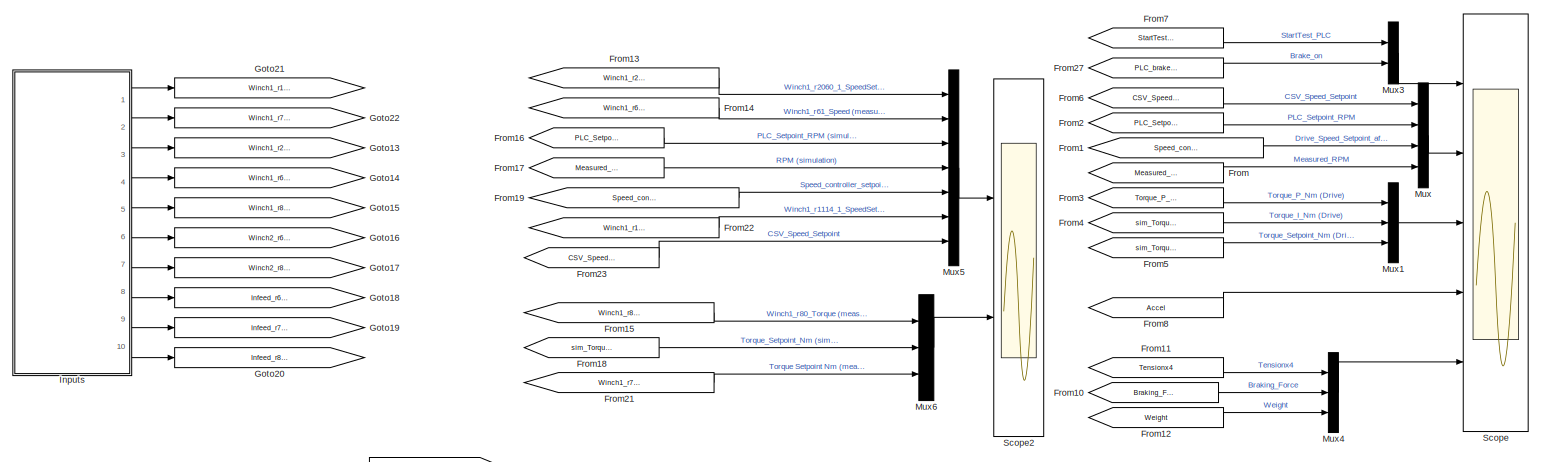
[diagram: root canvas - part 1/3, full width, top band]
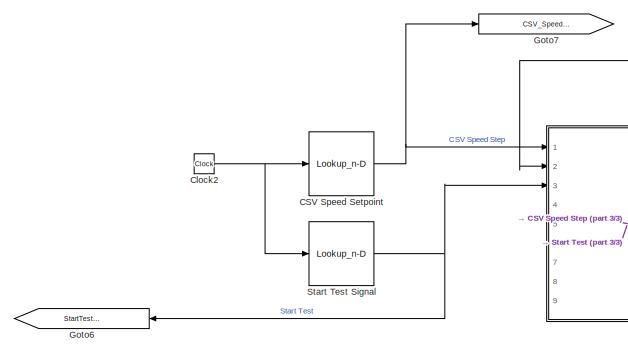
[diagram: root canvas - part 2/3, bottom left region]
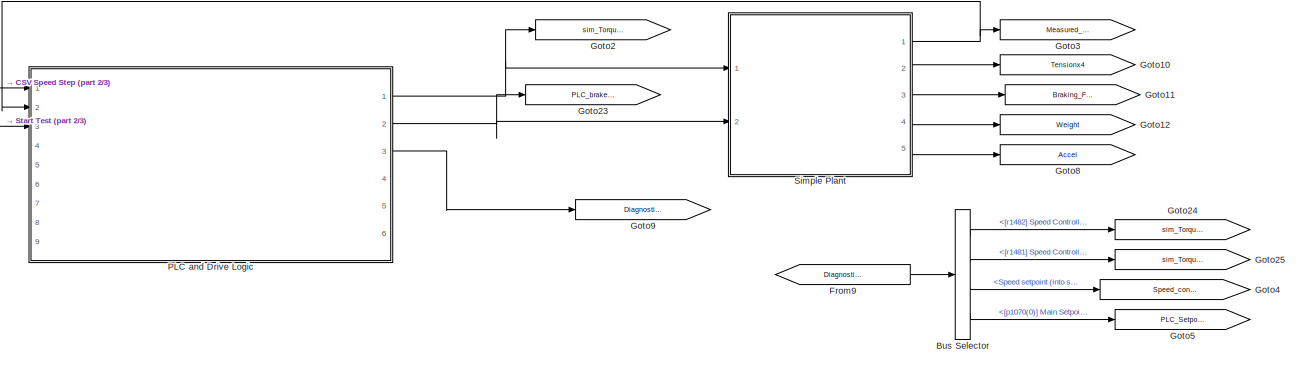
[diagram: root canvas - part 3/3, bottom center region]
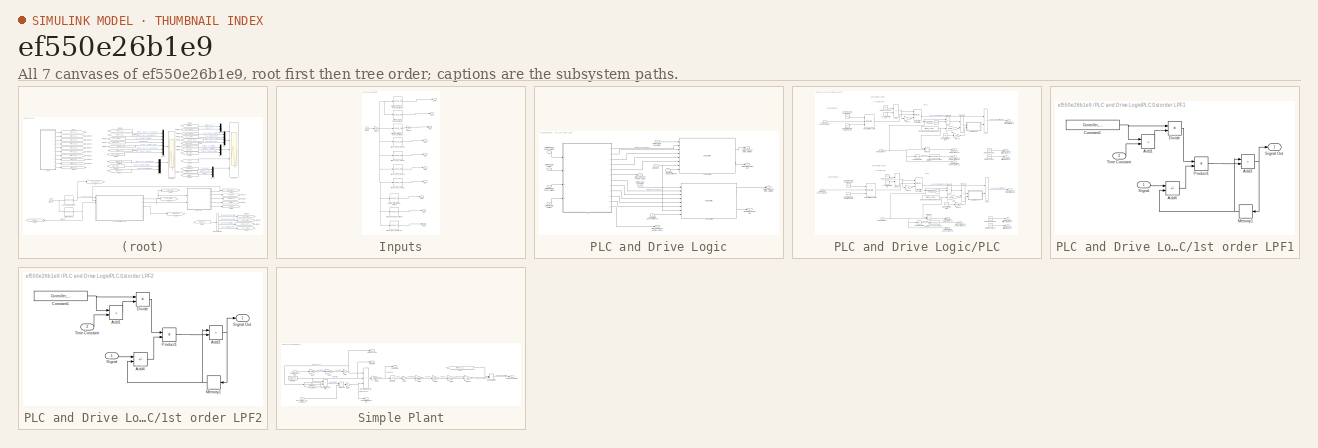
[diagram: thumbnail index - all 7 canvases of the model, root first then tree order]
MODEL slx_ef550e26b1e9
KIND model
CONFIG AbsTol = auto
CONFIG EnableMultiTasking = off
CONFIG FixedStep = auto
CONFIG MaxStep = 0.001
CONFIG MinStep = auto
CONFIG RelTol = 1e-3
CONFIG SampleTimeConstraint = Unconstrained
CONFIG SolverName = VariableStepAuto
CONFIG StartTime = 0.0
CONFIG StopTime = Time
BLOCK [BusSelector] Bus Selector
  OutputSignals = [r1482] Speed Controller I torque Output,[r1481] Speed Controller P torque Output,Speed setpoint (into speed controller),[p1070(0)]\nMain Setpoint\n(Speed setpoint from PLC)
  Ports = [1, 4]
BLOCK [Lookup_n-D] CSV Speed Setpoint
  BreakpointsForDimension1 = Speed_lookup_time
  InputPortMap = u0
  InternalRulePriority = Speed
  NumberOfTableDimensions = 1
  Ports = [1, 1]
  RndMeth = Simplest
  Table = Speed_lookup
BLOCK [Clock] Clock2
BLOCK [From] From
  GotoTag = Measured_RPM
BLOCK [From] From1
  GotoTag = Speed_controller_setpoint
BLOCK [From] From10
  GotoTag = Braking_Force
BLOCK [From] From11
  GotoTag = Tensionx4
BLOCK [From] From12
  GotoTag = Weight
BLOCK [From] From13
  GotoTag = Winch1_r2060_1_SpeedSetpoint
BLOCK [From] From14
  GotoTag = Winch1_r61_Speed
BLOCK [From] From15
  GotoTag = Winch1_r80_Torque
BLOCK [From] From16
  GotoTag = PLC_Setpoint_RPM
BLOCK [From] From17
  GotoTag = Measured_RPM
BLOCK [From] From18
  GotoTag = sim_Torque_Setpoint_Nm
BLOCK [From] From19
  GotoTag = Speed_controller_setpoint
BLOCK [From] From2
  GotoTag = PLC_Setpoint_RPM
BLOCK [From] From21
  GotoTag = Winch1_r79_TorqueSetpoint
BLOCK [From] From22
  GotoTag = Winch1_r1114_1_SpeedSetpoint
BLOCK [From] From23
  GotoTag = CSV_Speed_Setpoint
BLOCK [From] From27
  GotoTag = PLC_brake_on_command
BLOCK [From] From3
  GotoTag = Torque_P_Nm
BLOCK [From] From4
  GotoTag = sim_Torque_I_Nm
BLOCK [From] From5
  GotoTag = sim_Torque_Setpoint_Nm
  NameLocation = top
BLOCK [From] From6
  GotoTag = CSV_Speed_Setpoint
BLOCK [From] From7
  GotoTag = StartTest_PLC
BLOCK [From] From8
  GotoTag = Accel
BLOCK [From] From9
  GotoTag = Diagnostics_Bus
BLOCK [Goto] Goto10
  GotoTag = Tensionx4
BLOCK [Goto] Goto11
  GotoTag = Braking_Force
BLOCK [Goto] Goto12
  GotoTag = Weight
BLOCK [Goto] Goto13
  GotoTag = Winch1_r2060_1_SpeedSetpoint
BLOCK [Goto] Goto14
  GotoTag = Winch1_r61_Speed
BLOCK [Goto] Goto15
  GotoTag = Winch1_r80_Torque
BLOCK [Goto] Goto16
  GotoTag = Winch2_r61_Speed
BLOCK [Goto] Goto17
  GotoTag = Winch2_r80_Torque
BLOCK [Goto] Goto18
  GotoTag = Infeed_r68_Infeed_Current
BLOCK [Goto] Goto19
  GotoTag = Infeed_r70_DC_Voltage
BLOCK [Goto] Goto2
  GotoTag = sim_Torque_Setpoint_Nm
BLOCK [Goto] Goto20
  GotoTag = Infeed_r82_Power_kW
BLOCK [Goto] Goto21
  GotoTag = Winch1_r1114_1_SpeedSetpoint
BLOCK [Goto] Goto22
  GotoTag = Winch1_r79_TorqueSetpoint
BLOCK [Goto] Goto23
  GotoTag = PLC_brake_on_command
BLOCK [Goto] Goto24
  GotoTag = sim_Torque_I_Nm
BLOCK [Goto] Goto25
  GotoTag = sim_Torque_P_Nm
BLOCK [Goto] Goto3
  GotoTag = Measured_RPM
BLOCK [Goto] Goto4
  GotoTag = Speed_controller_setpoint
BLOCK [Goto] Goto5
  GotoTag = PLC_Setpoint_RPM
BLOCK [Goto] Goto6
  GotoTag = StartTest_PLC
  NameLocation = top
BLOCK [Goto] Goto7
  GotoTag = CSV_Speed_Setpoint
BLOCK [Goto] Goto8
  GotoTag = Accel
BLOCK [Goto] Goto9
  GotoTag = Diagnostics_Bus
BLOCK [SubSystem] Inputs
  Ports = [0, 10]
  RequestExecContextInheritance = off
BLOCK [Clock] Inputs/Clock
BLOCK [Gain] Inputs/Gain13
  Gain = 1e3
BLOCK [Gain] Inputs/Gain14
  Gain = 1.56*1e-6
BLOCK [Lookup_n-D] Inputs/Infeed_r68_Infeed_Current
  BreakpointsForDimension1 = Time_ms
  InputPortMap = u0
  InternalRulePriority = Speed
  NumberOfTableDimensions = 1
  Ports = [1, 1]
  RndMeth = Simplest
  Table = Infeed_r68_Infeed_Current
BLOCK [Lookup_n-D] Inputs/Infeed_r70_DC_Voltage
  BreakpointsForDimension1 = Time_ms
  InputPortMap = u0
  InternalRulePriority = Speed
  NumberOfTableDimensions = 1
  Ports = [1, 1]
  RndMeth = Simplest
  Table = Infeed_r70_DC_Voltage
BLOCK [Lookup_n-D] Inputs/Infeed_r82_Power_kW
  BreakpointsForDimension1 = Time_ms
  InputPortMap = u0
  InternalRulePriority = Speed
  NumberOfTableDimensions = 1
  Ports = [1, 1]
  RndMeth = Simplest
  Table = Infeed_r82_Power_kW
BLOCK [Outport] Inputs/Out1
BLOCK [Outport] Inputs/Out10
  Port = 10
BLOCK [Outport] Inputs/Out2
  Port = 2
BLOCK [Outport] Inputs/Out3
  Port = 3
BLOCK [Outport] Inputs/Out4
  Port = 4
BLOCK [Outport] Inputs/Out5
  Port = 5
BLOCK [Outport] Inputs/Out6
  Port = 6
BLOCK [Outport] Inputs/Out7
  Port = 7
BLOCK [Outport] Inputs/Out8
  Port = 8
BLOCK [Outport] Inputs/Out9
  Port = 9
BLOCK [Lookup_n-D] Inputs/Winch1_r1114_1_SpeedSetpoint
  BreakpointsForDimension1 = Time_ms
  InputPortMap = u0
  InternalRulePriority = Speed
  NumberOfTableDimensions = 1
  Ports = [1, 1]
  RndMeth = Simplest
  Table = Winch1_r1114_1_SpeedSetpoint
BLOCK [Lookup_n-D] Inputs/Winch1_r2060_1_SpeedSetpoint
  BreakpointsForDimension1 = Time_ms
  InputPortMap = u0
  InternalRulePriority = Speed
  NumberOfTableDimensions = 1
  Ports = [1, 1]
  RndMeth = Simplest
  Table = Winch1_r2060_1_SpeedSetpoint
BLOCK [Lookup_n-D] Inputs/Winch1_r61_Speed
  BreakpointsForDimension1 = Time_ms
  InputPortMap = u0
  InternalRulePriority = Speed
  NumberOfTableDimensions = 1
  Ports = [1, 1]
  RndMeth = Simplest
  Table = Winch1_r61_Speed
BLOCK [Lookup_n-D] Inputs/Winch1_r79_TorqueSetpoint
  BreakpointsForDimension1 = Time_ms
  InputPortMap = u0
  InternalRulePriority = Speed
  NumberOfTableDimensions = 1
  Ports = [1, 1]
  RndMeth = Simplest
  Table = Winch1_r79_TorqueSetpoint
BLOCK [Lookup_n-D] Inputs/Winch1_r80_Torque
  BreakpointsForDimension1 = Time_ms
  InputPortMap = u0
  InternalRulePriority = Speed
  NumberOfTableDimensions = 1
  Ports = [1, 1]
  RndMeth = Simplest
  Table = Winch1_r80_Torque
BLOCK [Lookup_n-D] Inputs/Winch2_r61_Speed
  BreakpointsForDimension1 = Time_ms
  InputPortMap = u0
  InternalRulePriority = Speed
  NumberOfTableDimensions = 1
  Ports = [1, 1]
  RndMeth = Simplest
  Table = Winch2_r61_Speed
BLOCK [Lookup_n-D] Inputs/Winch2_r80_Torque
  BreakpointsForDimension1 = Time_ms
  InputPortMap = u0
  InternalRulePriority = Speed
  NumberOfTableDimensions = 1
  Ports = [1, 1]
  RndMeth = Simplest
  Table = Winch2_r80_Torque
BLOCK [Mux] Mux
  DisplayOption = bar
  Ports = [4, 1]
BLOCK [Mux] Mux1
  DisplayOption = bar
  Inputs = 3
  Ports = [3, 1]
BLOCK [Mux] Mux3
  DisplayOption = bar
  Inputs = 2
  Ports = [2, 1]
BLOCK [Mux] Mux4
  DisplayOption = bar
  Inputs = 3
  Ports = [3, 1]
BLOCK [Mux] Mux5
  DisplayOption = bar
  Inputs = 7
  Ports = [7, 1]
BLOCK [Mux] Mux6
  DisplayOption = bar
  Inputs = 3
  Ports = [3, 1]
BLOCK [SubSystem] PLC and Drive Logic
  AncestorBlock = Control_Library_Rev3/PLC and Drive Logic
  Ports = [9, 6]
  RequestExecContextInheritance = off
BLOCK [Inport] PLC and Drive Logic/HMI Motor 1 CSV Speed Setpoint (rpm)
BLOCK [Inport] PLC and Drive Logic/HMI Motor 1 Start Test [0...1]
  Port = 3
BLOCK [Inport] PLC and Drive Logic/HMI Motor 2 CSV Speed Setpoint (rpm)
  Port = 4
BLOCK [Inport] PLC and Drive Logic/HMI Motor 2 Start Test [0...1]
  Port = 5
BLOCK [Outport] PLC and Drive Logic/M1 [r0079] M_set total (Torque setpoint [Nm])
BLOCK [Outport] PLC and Drive Logic/M2 [r0079] M_set total (Torque setpoint [Nm])
  Port = 4
BLOCK [Inport] PLC and Drive Logic/Motor 1 Actual Speed (rpm)
  NameLocation = top
  Port = 2
BLOCK [Outport] PLC and Drive Logic/Motor 1 Diagnostics Bus
  Port = 3
BLOCK [Inport] PLC and Drive Logic/Motor 2 Actual Speed (rpm)
  NameLocation = top
  Port = 6
BLOCK [Outport] PLC and Drive Logic/Motor 2 Diagnostics Bus
  Port = 5
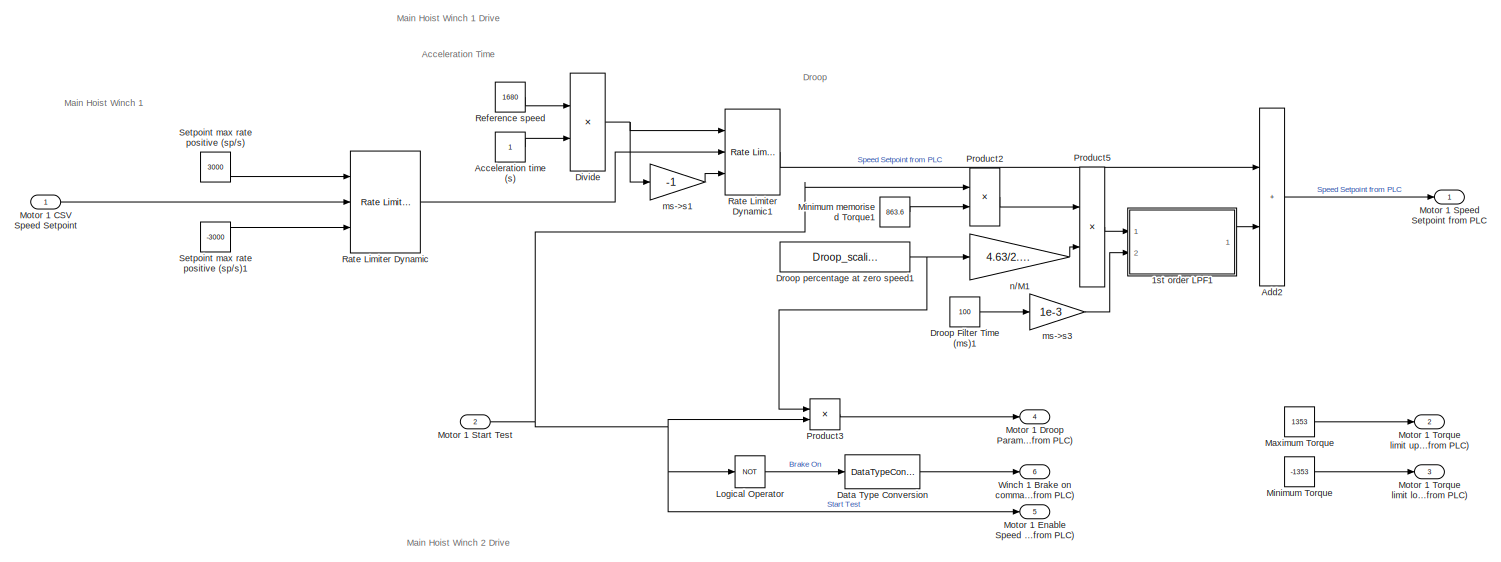
[diagram: PLC and Drive Logic/PLC - part 1/2, full width, top band]
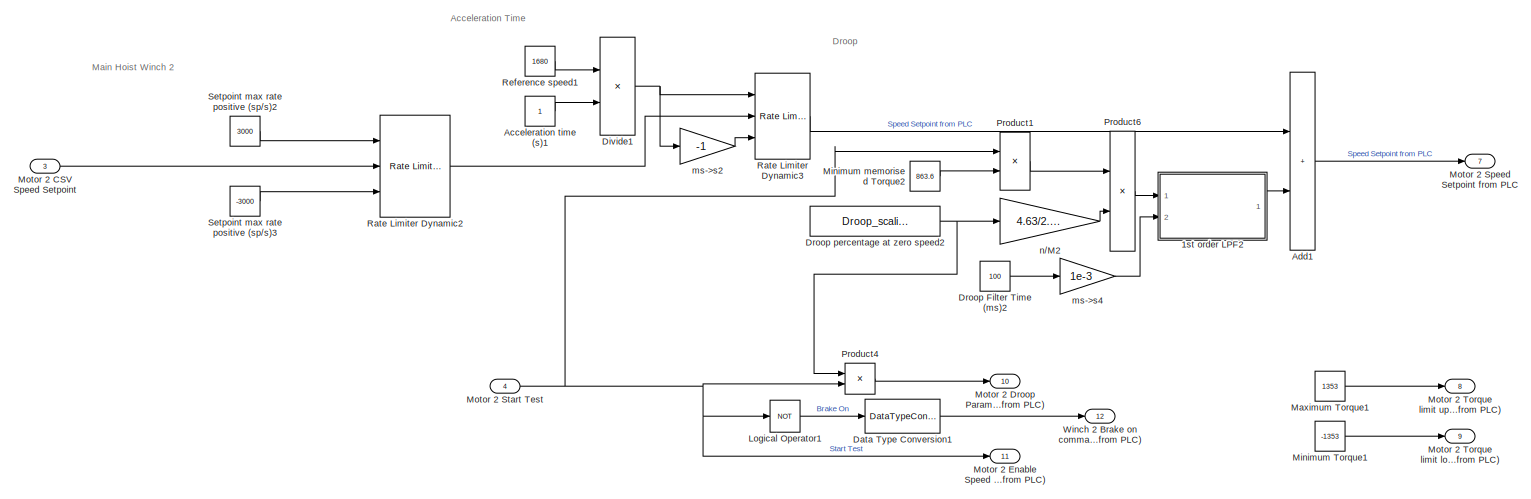
[diagram: PLC and Drive Logic/PLC - part 2/2, full width, bottom band]
BLOCK [SubSystem] PLC and Drive Logic/PLC
  Ports = [4, 12]
  RequestExecContextInheritance = off
  SystemSampleTime = Controller_sampleTime
  TreatAsAtomicUnit = on
BLOCK [SubSystem] PLC and Drive Logic/PLC/1st order LPF1
  Ports = [2, 1]
  RequestExecContextInheritance = off
BLOCK [Sum] PLC and Drive Logic/PLC/1st order LPF1/Add1
  IconShape = rectangular
  Ports = [2, 1]
BLOCK [Sum] PLC and Drive Logic/PLC/1st order LPF1/Add3
  IconShape = rectangular
  Ports = [2, 1]
BLOCK [Sum] PLC and Drive Logic/PLC/1st order LPF1/Add4
  IconShape = rectangular
  Inputs = +-
  Ports = [2, 1]
BLOCK [Constant] PLC and Drive Logic/PLC/1st order LPF1/Constant1
  Value = Controller_sampleTime
BLOCK [Product] PLC and Drive Logic/PLC/1st order LPF1/Divide
  Inputs = */
  Ports = [2, 1]
BLOCK [Memory] PLC and Drive Logic/PLC/1st order LPF1/Memory1
  InheritSampleTime = on
  InitialCondition = Yo
BLOCK [Product] PLC and Drive Logic/PLC/1st order LPF1/Product1
  Ports = [2, 1]
  RndMeth = Zero
BLOCK [Inport] PLC and Drive Logic/PLC/1st order LPF1/Signal
BLOCK [Outport] PLC and Drive Logic/PLC/1st order LPF1/Signal Out
  VectorParamsAs1DForOutWhenUnconnected = off
BLOCK [Inport] PLC and Drive Logic/PLC/1st order LPF1/Time Constant
  Port = 2
BLOCK [SubSystem] PLC and Drive Logic/PLC/1st order LPF2
  Ports = [2, 1]
  RequestExecContextInheritance = off
BLOCK [Sum] PLC and Drive Logic/PLC/1st order LPF2/Add1
  IconShape = rectangular
  Ports = [2, 1]
BLOCK [Sum] PLC and Drive Logic/PLC/1st order LPF2/Add3
  IconShape = rectangular
  Ports = [2, 1]
BLOCK [Sum] PLC and Drive Logic/PLC/1st order LPF2/Add4
  IconShape = rectangular
  Inputs = +-
  Ports = [2, 1]
BLOCK [Constant] PLC and Drive Logic/PLC/1st order LPF2/Constant1
  Value = Controller_sampleTime
BLOCK [Product] PLC and Drive Logic/PLC/1st order LPF2/Divide
  Inputs = */
  Ports = [2, 1]
BLOCK [Memory] PLC and Drive Logic/PLC/1st order LPF2/Memory1
  InheritSampleTime = on
  InitialCondition = Yo
BLOCK [Product] PLC and Drive Logic/PLC/1st order LPF2/Product1
  Ports = [2, 1]
  RndMeth = Zero
BLOCK [Inport] PLC and Drive Logic/PLC/1st order LPF2/Signal
BLOCK [Outport] PLC and Drive Logic/PLC/1st order LPF2/Signal Out
  VectorParamsAs1DForOutWhenUnconnected = off
BLOCK [Inport] PLC and Drive Logic/PLC/1st order LPF2/Time Constant
  Port = 2
BLOCK [Constant] PLC and Drive Logic/PLC/Acceleration time (s)
BLOCK [Constant] PLC and Drive Logic/PLC/Acceleration time (s)1
BLOCK [Sum] PLC and Drive Logic/PLC/Add1
  IconShape = rectangular
  Ports = [2, 1]
BLOCK [Sum] PLC and Drive Logic/PLC/Add2
  IconShape = rectangular
  Ports = [2, 1]
BLOCK [DataTypeConversion] PLC and Drive Logic/PLC/Data Type Conversion
  OutDataTypeStr = double
  RndMeth = Floor
  SaturateOnIntegerOverflow = off
BLOCK [DataTypeConversion] PLC and Drive Logic/PLC/Data Type Conversion1
  OutDataTypeStr = double
  RndMeth = Floor
  SaturateOnIntegerOverflow = off
BLOCK [Product] PLC and Drive Logic/PLC/Divide
  Inputs = */
  Ports = [2, 1]
BLOCK [Product] PLC and Drive Logic/PLC/Divide1
  Inputs = */
  Ports = [2, 1]
BLOCK [Constant] PLC and Drive Logic/PLC/Droop Filter Time (ms)1
  Value = 100
BLOCK [Constant] PLC and Drive Logic/PLC/Droop Filter Time (ms)2
  Value = 100
BLOCK [Constant] PLC and Drive Logic/PLC/Droop percentage at zero speed1
  Value = Droop_scaling
BLOCK [Constant] PLC and Drive Logic/PLC/Droop percentage at zero speed2
  Value = Droop_scaling
BLOCK [Logic] PLC and Drive Logic/PLC/Logical Operator
  AllPortsSameDT = off
  Operator = NOT
  OutDataTypeStr = boolean
  Ports = [1, 1]
BLOCK [Logic] PLC and Drive Logic/PLC/Logical Operator1
  AllPortsSameDT = off
  Operator = NOT
  OutDataTypeStr = boolean
  Ports = [1, 1]
BLOCK [Constant] PLC and Drive Logic/PLC/Maximum Torque
  Value = 1353
BLOCK [Constant] PLC and Drive Logic/PLC/Maximum Torque1
  Value = 1353
BLOCK [Constant] PLC and Drive Logic/PLC/Minimum Torque
  Value = -1353
BLOCK [Constant] PLC and Drive Logic/PLC/Minimum Torque1
  Value = -1353
BLOCK [Constant] PLC and Drive Logic/PLC/Minimum memorised Torque1
  Value = 863.6
BLOCK [Constant] PLC and Drive Logic/PLC/Minimum memorised Torque2
  Value = 863.6
BLOCK [Inport] PLC and Drive Logic/PLC/Motor 1 CSV Speed Setpoint
BLOCK [Outport] PLC and Drive Logic/PLC/Motor 1 Droop Parameter (from PLC)
  Port = 4
BLOCK [Outport] PLC and Drive Logic/PLC/Motor 1 Enable Speed Setpoint (from PLC)
  Port = 5
BLOCK [Outport] PLC and Drive Logic/PLC/Motor 1 Speed Setpoint from PLC
BLOCK [Inport] PLC and Drive Logic/PLC/Motor 1 Start Test
  Port = 2
BLOCK [Outport] PLC and Drive Logic/PLC/Motor 1 Torque limit lower (from PLC)
  Port = 3
BLOCK [Outport] PLC and Drive Logic/PLC/Motor 1 Torque limit upper (from PLC)
  Port = 2
BLOCK [Inport] PLC and Drive Logic/PLC/Motor 2 CSV Speed Setpoint
  Port = 3
BLOCK [Outport] PLC and Drive Logic/PLC/Motor 2 Droop Parameter (from PLC)
  Port = 10
BLOCK [Outport] PLC and Drive Logic/PLC/Motor 2 Enable Speed Setpoint (from PLC)
  Port = 11
BLOCK [Outport] PLC and Drive Logic/PLC/Motor 2 Speed Setpoint from PLC
  Port = 7
BLOCK [Inport] PLC and Drive Logic/PLC/Motor 2 Start Test
  Port = 4
BLOCK [Outport] PLC and Drive Logic/PLC/Motor 2 Torque limit lower (from PLC)
  Port = 9
BLOCK [Outport] PLC and Drive Logic/PLC/Motor 2 Torque limit upper (from PLC)
  Port = 8
BLOCK [Product] PLC and Drive Logic/PLC/Product1
  Inputs = **
  Ports = [2, 1]
BLOCK [Product] PLC and Drive Logic/PLC/Product2
  Inputs = **
  Ports = [2, 1]
BLOCK [Product] PLC and Drive Logic/PLC/Product3
  Ports = [2, 1]
BLOCK [Product] PLC and Drive Logic/PLC/Product4
  Ports = [2, 1]
BLOCK [Product] PLC and Drive Logic/PLC/Product5
  Inputs = **
  Ports = [2, 1]
BLOCK [Product] PLC and Drive Logic/PLC/Product6
  Inputs = **
  Ports = [2, 1]
BLOCK [Reference] PLC and Drive Logic/PLC/Rate Limiter Dynamic  REF=simulink/Discontinuities/Rate Limiter
Dynamic
  NameLocation = top
  Ports = [3, 1]
  SourceBlock = simulink/Discontinuities/Rate Limiter\nDynamic
  SourceProductBaseCode = SL
  SourceType = Rate Limiter Dynamic
BLOCK [Reference] PLC and Drive Logic/PLC/Rate Limiter Dynamic1  REF=simulink/Discontinuities/Rate Limiter
Dynamic
  Ports = [3, 1]
  SourceBlock = simulink/Discontinuities/Rate Limiter\nDynamic
  SourceProductBaseCode = SL
  SourceType = Rate Limiter Dynamic
BLOCK [Reference] PLC and Drive Logic/PLC/Rate Limiter Dynamic2  REF=simulink/Discontinuities/Rate Limiter
Dynamic
  NameLocation = top
  Ports = [3, 1]
  SourceBlock = simulink/Discontinuities/Rate Limiter\nDynamic
  SourceProductBaseCode = SL
  SourceType = Rate Limiter Dynamic
BLOCK [Reference] PLC and Drive Logic/PLC/Rate Limiter Dynamic3  REF=simulink/Discontinuities/Rate Limiter
Dynamic
  Ports = [3, 1]
  SourceBlock = simulink/Discontinuities/Rate Limiter\nDynamic
  SourceProductBaseCode = SL
  SourceType = Rate Limiter Dynamic
BLOCK [Constant] PLC and Drive Logic/PLC/Reference speed
  Value = 1680
BLOCK [Constant] PLC and Drive Logic/PLC/Reference speed1
  Value = 1680
BLOCK [Constant] PLC and Drive Logic/PLC/Setpoint max rate positive (sp//s)
  Value = 3000
BLOCK [Constant] PLC and Drive Logic/PLC/Setpoint max rate positive (sp//s)1
  Value = -3000
BLOCK [Constant] PLC and Drive Logic/PLC/Setpoint max rate positive (sp//s)2
  Value = 3000
BLOCK [Constant] PLC and Drive Logic/PLC/Setpoint max rate positive (sp//s)3
  Value = -3000
BLOCK [Outport] PLC and Drive Logic/PLC/Winch 1 Brake on command (from PLC)
  Port = 6
BLOCK [Outport] PLC and Drive Logic/PLC/Winch 2 Brake on command (from PLC)
  Port = 12
BLOCK [Gain] PLC and Drive Logic/PLC/ms->s1
  Gain = -1
BLOCK [Gain] PLC and Drive Logic/PLC/ms->s2
  Gain = -1
BLOCK [Gain] PLC and Drive Logic/PLC/ms->s3
  Gain = 1e-3
BLOCK [Gain] PLC and Drive Logic/PLC/ms->s4
  Gain = 1e-3
BLOCK [Gain] PLC and Drive Logic/PLC/n//M1
  Gain = 4.63/2.52982
BLOCK [Gain] PLC and Drive Logic/PLC/n//M2
  Gain = 4.63/2.52982
BLOCK [Reference] PLC and Drive Logic/VFD Control1  REF=Control_Library_Rev3/VFD Control
  Ports = [8, 2]
  SourceBlock = Control_Library_Rev3/VFD Control
  SourceType = SubSystem
BLOCK [Reference] PLC and Drive Logic/VFD Control2  REF=Control_Library_Rev3/VFD Control
  Ports = [8, 2]
  SourceBlock = Control_Library_Rev3/VFD Control
  SourceType = SubSystem
BLOCK [Inport] PLC and Drive Logic/WAB Mode
  Port = 7
BLOCK [Inport] PLC and Drive Logic/WAB Motor 1 Speed_Controller Setpoint (r1438)
  Port = 8
BLOCK [Inport] PLC and Drive Logic/WAB Motor 2 Speed_Controller Setpoint (r1438)
  Port = 9
BLOCK [Outport] PLC and Drive Logic/Winch 1 brake on command (from PLC) [0...1]
  Port = 2
BLOCK [Outport] PLC and Drive Logic/Winch 2 brake on command (from PLC) [0...1]
  Port = 6
BLOCK [Scope] Scope
  Floating = off
  NumInputPorts = 5
  Ports = [5]
  ScopeSpecificationString = Simulink.scopes.TimeScopeBlockCfg('CurrentConfiguration', extmgr.ConfigurationSet(extmgr.Configuration('Core','General UI',true),extmgr.Configuration('Core','Source UI',true),extmgr.Configuration('Sources','WiredSimulink',true),extmgr.Configuration('Visuals','Time Domain',true,'SerializedDisplays',{struct('MinYLimReal','-0.125','MaxYLimReal','1.125','YLabelReal','','MinYLimMag','0.00000','MaxYLimM...<+5071ch>
BLOCK [Scope] Scope2
  Floating = off
  NumInputPorts = 2
  Ports = [2]
  ScopeSpecificationString = Simulink.scopes.TimeScopeBlockCfg('CurrentConfiguration', extmgr.ConfigurationSet(extmgr.Configuration('Core','General UI',true),extmgr.Configuration('Core','Source UI',true),extmgr.Configuration('Sources','WiredSimulink',true,'DataLoggingVariableName','ScopeData1'),extmgr.Configuration('Visuals','Time Domain',true,'SerializedDisplays',{struct('MinYLimReal','-2083.89888','MaxYLimReal','1596.43147'...<+2899ch>
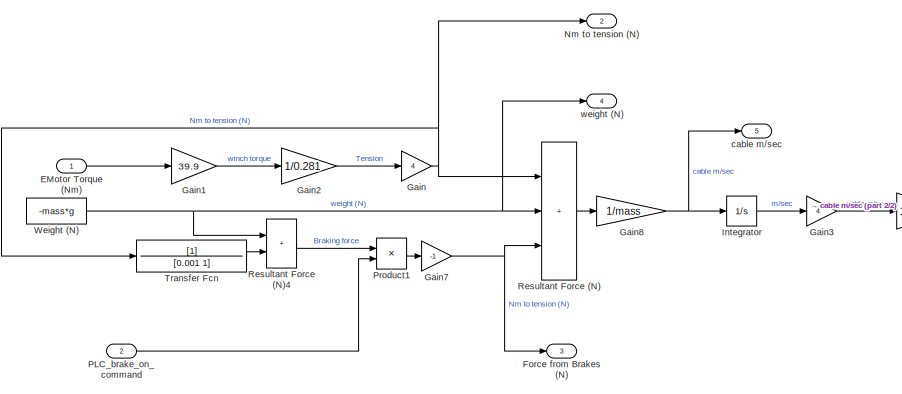
[diagram: Simple Plant - part 1/2, left side, full height]
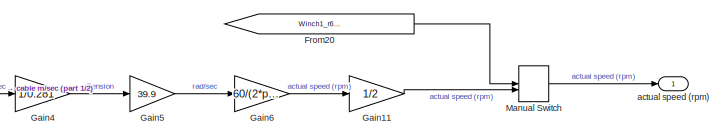
[diagram: Simple Plant - part 2/2, middle right region]
BLOCK [SubSystem] Simple Plant
  Ports = [2, 5]
  RequestExecContextInheritance = off
BLOCK [Inport] Simple Plant/EMotor Torque (Nm)
  NameLocation = top
BLOCK [Outport] Simple Plant/Force from Brakes (N)
  Port = 3
BLOCK [From] Simple Plant/From20
  GotoTag = Winch1_r61_Speed
BLOCK [Gain] Simple Plant/Gain
  Gain = 4
BLOCK [Gain] Simple Plant/Gain1
  Gain = 39.9
BLOCK [Gain] Simple Plant/Gain11
  Gain = 1/2
BLOCK [Gain] Simple Plant/Gain2
  Gain = 1/0.281
BLOCK [Gain] Simple Plant/Gain3
  Gain = 4
BLOCK [Gain] Simple Plant/Gain4
  Gain = 1/0.281
BLOCK [Gain] Simple Plant/Gain5
  Gain = 39.9
BLOCK [Gain] Simple Plant/Gain6
  Gain = 60/(2*pi)
BLOCK [Gain] Simple Plant/Gain7
  Gain = -1
BLOCK [Gain] Simple Plant/Gain8
  Gain = 1/mass
BLOCK [Integrator] Simple Plant/Integrator
  Ports = [1, 1]
BLOCK [ManualSwitch] Simple Plant/Manual Switch
  CurrentSetting = 0
BLOCK [Outport] Simple Plant/Nm to tension (N)
  Port = 2
BLOCK [Inport] Simple Plant/PLC_brake_on_command
  Port = 2
BLOCK [Product] Simple Plant/Product1
  Ports = [2, 1]
BLOCK [Sum] Simple Plant/Resultant Force (N)
  IconShape = rectangular
  Inputs = +++
  Ports = [3, 1]
BLOCK [Sum] Simple Plant/Resultant Force (N)4
  IconShape = rectangular
  Ports = [2, 1]
BLOCK [TransferFcn] Simple Plant/Transfer Fcn
  Denominator = [0.001 1]
BLOCK [Constant] Simple Plant/Weight (N)
  Value = -mass*g
BLOCK [Outport] Simple Plant/actual speed (rpm)
BLOCK [Outport] Simple Plant/cable m//sec
  Port = 5
BLOCK [Outport] Simple Plant/weight (N)
  Port = 4
BLOCK [Lookup_n-D] Start Test Signal
  BreakpointsForDimension1 = Experiment_Start_lookup_time
  InputPortMap = u0
  InternalRulePriority = Speed
  NumberOfTableDimensions = 1
  Ports = [1, 1]
  RndMeth = Simplest
  Table = Experiment_Start_lookup
ANNOTATION PLC and Drive Logic/PLC: Acceleration Time
ANNOTATION PLC and Drive Logic/PLC: Droop
ANNOTATION PLC and Drive Logic/PLC: Main Hoist Winch 1
ANNOTATION PLC and Drive Logic/PLC: Main Hoist Winch 1 Drive
ANNOTATION PLC and Drive Logic/PLC: Main Hoist Winch 2
ANNOTATION PLC and Drive Logic/PLC: Main Hoist Winch 2 Drive
LINE Bus Selector:1 -> Goto24:1
LINE Bus Selector:2 -> Goto25:1
LINE Bus Selector:3 -> Goto4:1
LINE Bus Selector:4 -> Goto5:1
NET CSV Speed Setpoint:1 -> Goto7:1, PLC and Drive Logic:1
NET Clock2:1 -> CSV Speed Setpoint:1, Start Test Signal:1
LINE From10:1 -> Mux4:2
LINE From11:1 -> Mux4:1
LINE From12:1 -> Mux4:3
LINE From13:1 -> Mux5:1
LINE From14:1 -> Mux5:2
LINE From15:1 -> Mux6:1
LINE From16:1 -> Mux5:3
LINE From17:1 -> Mux5:4
LINE From18:1 -> Mux6:2
LINE From19:1 -> Mux5:5
LINE From1:1 -> Mux:3
LINE From21:1 -> Mux6:3
LINE From22:1 -> Mux5:6
LINE From23:1 -> Mux5:7
LINE From27:1 -> Mux3:2
LINE From2:1 -> Mux:2
LINE From3:1 -> Mux1:1
LINE From4:1 -> Mux1:2
LINE From5:1 -> Mux1:3
LINE From6:1 -> Mux:1
LINE From7:1 -> Mux3:1
LINE From8:1 -> Scope:4
LINE From9:1 -> Bus Selector:1
LINE From:1 -> Mux:4
LINE Inputs/Clock:1 -> Inputs/Gain13:1
NET Inputs/Gain13:1 -> Inputs/Infeed_r68_Infeed_Current:1, Inputs/Infeed_r70_DC_Voltage:1, Inputs/Infeed_r82_Power_kW:1, Inputs/Winch1_r1114_1_SpeedSetpoint:1, Inputs/Winch1_r2060_1_SpeedSetpoint:1, Inputs/Winch1_r61_Speed:1, Inputs/Winch1_r79_TorqueSetpoint:1, Inputs/Winch1_r80_Torque:1, Inputs/Winch2_r61_Speed:1, Inputs/Winch2_r80_Torque:1
LINE Inputs/Gain14:1 -> Inputs/Out3:1
LINE Inputs/Infeed_r68_Infeed_Current:1 -> Inputs/Out8:1
LINE Inputs/Infeed_r70_DC_Voltage:1 -> Inputs/Out9:1
LINE Inputs/Infeed_r82_Power_kW:1 -> Inputs/Out10:1
LINE Inputs/Winch1_r1114_1_SpeedSetpoint:1 -> Inputs/Out1:1
LINE Inputs/Winch1_r2060_1_SpeedSetpoint:1 -> Inputs/Gain14:1
LINE Inputs/Winch1_r61_Speed:1 -> Inputs/Out4:1
LINE Inputs/Winch1_r79_TorqueSetpoint:1 -> Inputs/Out2:1
LINE Inputs/Winch1_r80_Torque:1 -> Inputs/Out5:1
LINE Inputs/Winch2_r61_Speed:1 -> Inputs/Out6:1
LINE Inputs/Winch2_r80_Torque:1 -> Inputs/Out7:1
LINE Inputs:1 -> Goto21:1
LINE Inputs:10 -> Goto20:1
LINE Inputs:2 -> Goto22:1
LINE Inputs:3 -> Goto13:1
LINE Inputs:4 -> Goto14:1
LINE Inputs:5 -> Goto15:1
LINE Inputs:6 -> Goto16:1
LINE Inputs:7 -> Goto17:1
LINE Inputs:8 -> Goto18:1
LINE Inputs:9 -> Goto19:1
LINE Mux1:1 -> Scope:3
LINE Mux3:1 -> Scope:1
LINE Mux4:1 -> Scope:5
LINE Mux5:1 -> Scope2:1
LINE Mux6:1 -> Scope2:2
LINE Mux:1 -> Scope:2
NET PLC and Drive Logic:1 -> Goto2:1, Simple Plant:1
NET PLC and Drive Logic:2 -> Goto23:1, Simple Plant:2
LINE PLC and Drive Logic:3 -> Goto9:1
LINE Simple Plant/EMotor Torque (Nm):1 -> Simple Plant/Gain1:1
LINE Simple Plant/From20:1 -> Simple Plant/Manual Switch:1
LINE Simple Plant/Gain11:1 -> Simple Plant/Manual Switch:2
LINE Simple Plant/Gain1:1 -> Simple Plant/Gain2:1
LINE Simple Plant/Gain2:1 -> Simple Plant/Gain:1
LINE Simple Plant/Gain3:1 -> Simple Plant/Gain4:1
LINE Simple Plant/Gain4:1 -> Simple Plant/Gain5:1
LINE Simple Plant/Gain5:1 -> Simple Plant/Gain6:1
LINE Simple Plant/Gain6:1 -> Simple Plant/Gain11:1
NET Simple Plant/Gain7:1 -> Simple Plant/Force from Brakes (N):1, Simple Plant/Resultant Force (N):3
NET Simple Plant/Gain8:1 -> Simple Plant/Integrator:1, Simple Plant/cable m//sec:1
NET Simple Plant/Gain:1 -> Simple Plant/Nm to tension (N):1, Simple Plant/Resultant Force (N):1, Simple Plant/Transfer Fcn:1
LINE Simple Plant/Integrator:1 -> Simple Plant/Gain3:1
LINE Simple Plant/Manual Switch:1 -> Simple Plant/actual speed (rpm):1
LINE Simple Plant/PLC_brake_on_command:1 -> Simple Plant/Product1:2
LINE Simple Plant/Product1:1 -> Simple Plant/Gain7:1
LINE Simple Plant/Resultant Force (N)4:1 -> Simple Plant/Product1:1
LINE Simple Plant/Resultant Force (N):1 -> Simple Plant/Gain8:1
LINE Simple Plant/Transfer Fcn:1 -> Simple Plant/Resultant Force (N)4:2
NET Simple Plant/Weight (N):1 -> Simple Plant/Resultant Force (N)4:1, Simple Plant/Resultant Force (N):2, Simple Plant/weight (N):1
NET Simple Plant:1 -> Goto3:1, PLC and Drive Logic:2
LINE Simple Plant:2 -> Goto10:1
LINE Simple Plant:3 -> Goto11:1
LINE Simple Plant:4 -> Goto12:1
LINE Simple Plant:5 -> Goto8:1
NET Start Test Signal:1 -> Goto6:1, PLC and Drive Logic:3
note: NET lines group one-source signal fan-out (src -> all destinations, sorted); 1:1 wires keep LINE
